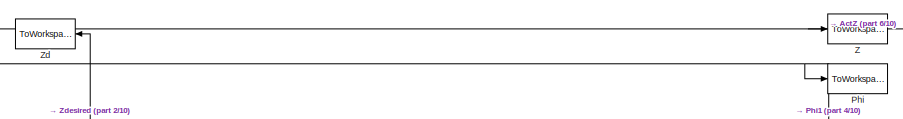
[diagram: root canvas - part 1/10, top center region]
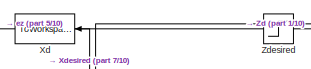
[diagram: root canvas - part 2/10, top center region]
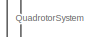
[diagram: root canvas - part 3/10, top right region]
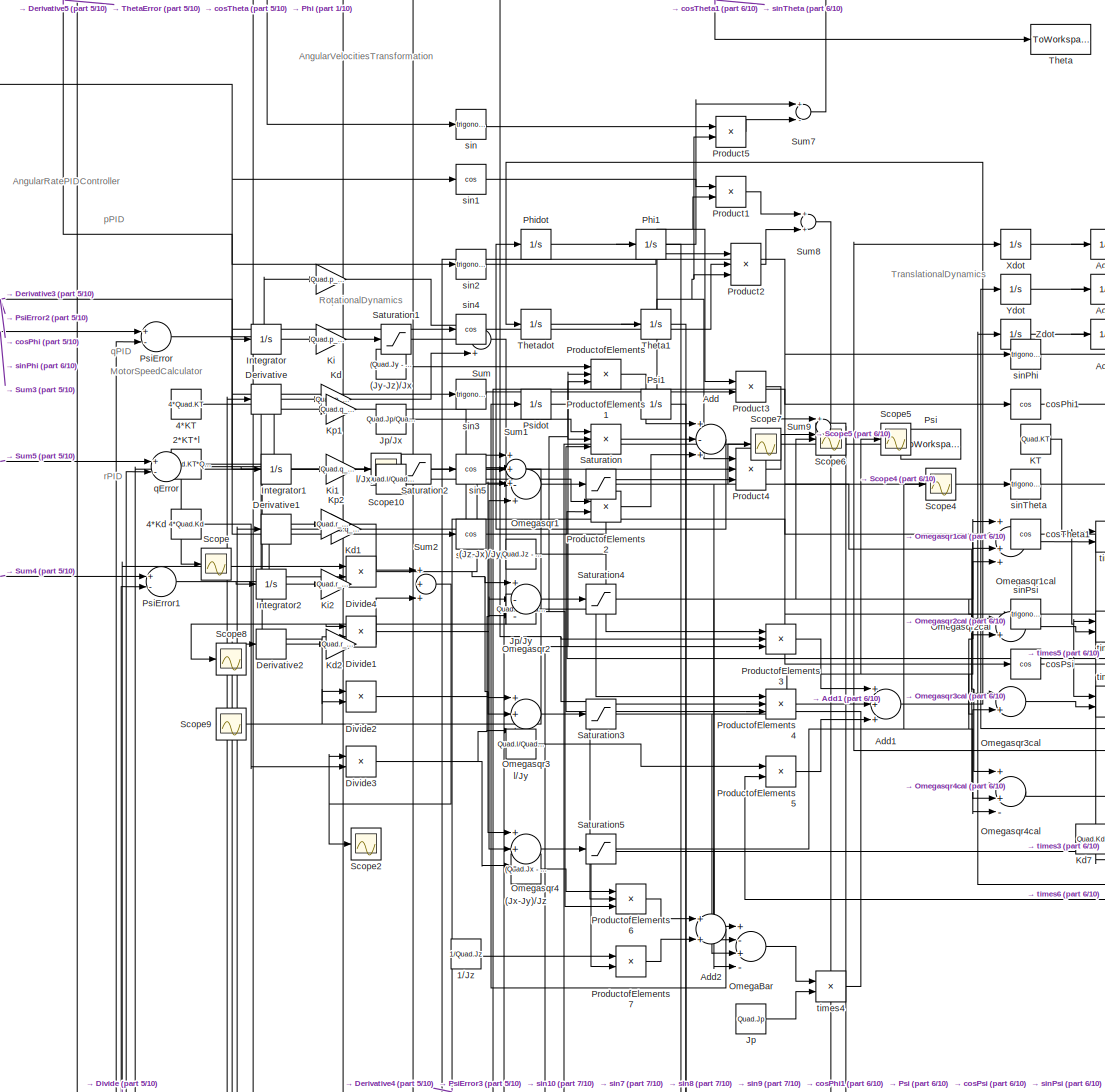
[diagram: root canvas - part 4/10, middle right region]
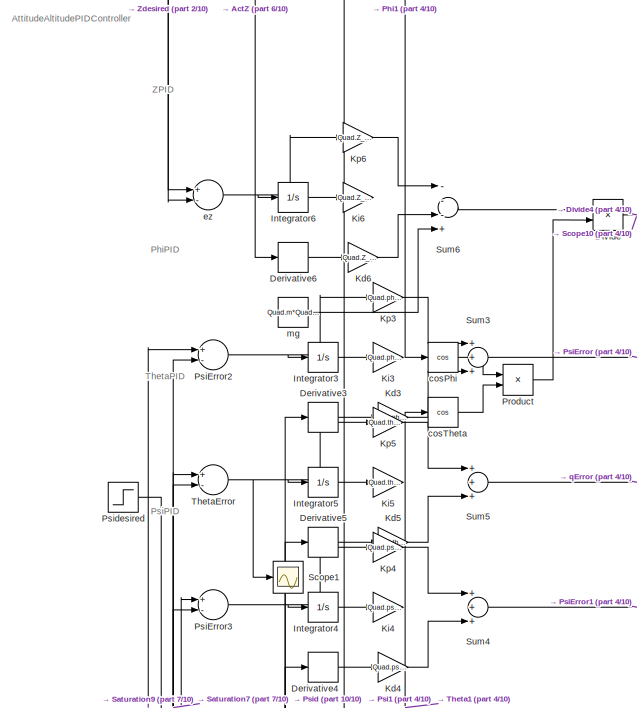
[diagram: root canvas - part 5/10, middle left region]
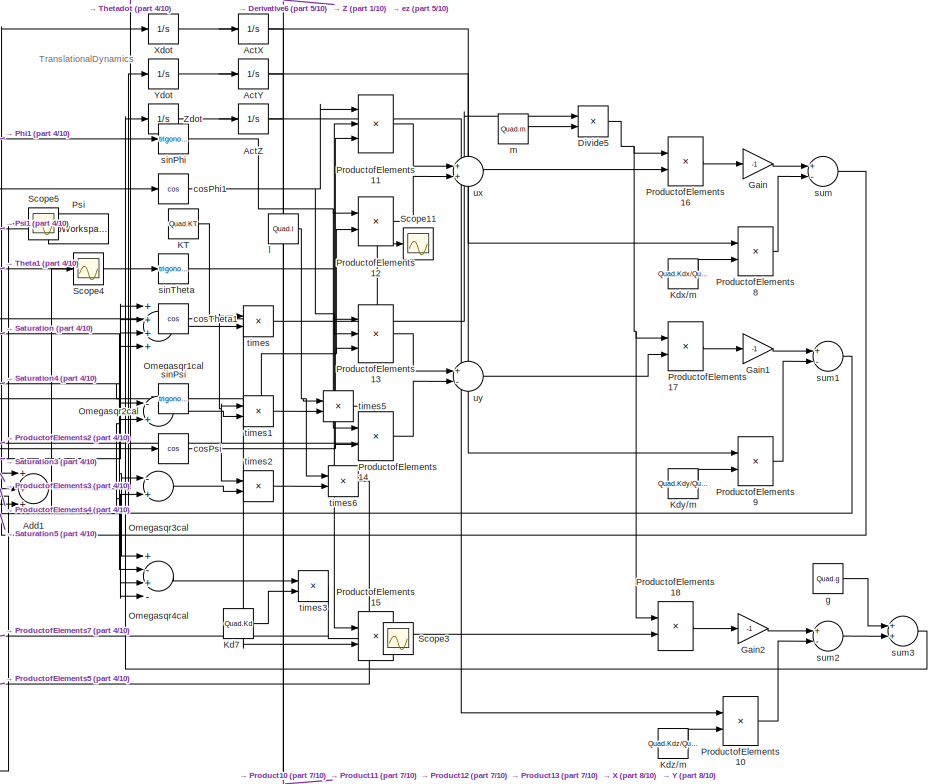
[diagram: root canvas - part 6/10, middle right region]
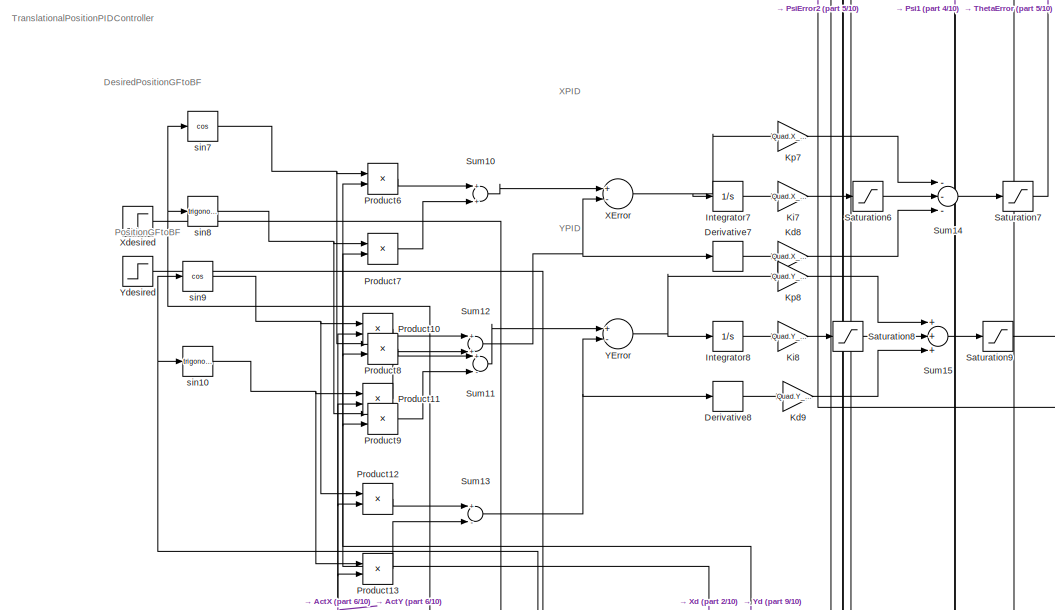
[diagram: root canvas - part 7/10, middle left region]
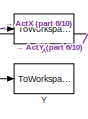
[diagram: root canvas - part 8/10, bottom right region]
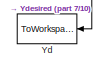
[diagram: root canvas - part 9/10, bottom center region]
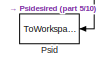
[diagram: root canvas - part 10/10, bottom center region]
MODEL slx_f68c8c38530a
KIND model
CONFIG AbsTol = auto
CONFIG EnableMultiTasking = on
CONFIG FixedStep = auto
CONFIG MaxStep = auto
CONFIG MinStep = auto
CONFIG RelTol = 1e-3
CONFIG SampleTimeConstraint = Unconstrained
CONFIG Solver = ode45
CONFIG SolverName = ode45
CONFIG StartTime = 0.0
CONFIG StopTime = 10
WORKSPACE source: external: MAT-File  (data not in archive)
BLOCK [Constant] (Jx-Jy)//Jz
  Value = (Quad.Jx - Quad.Jy)/Quad.Jz
BLOCK [Constant] (Jy-Jz)//Jx
  Value = (Quad.Jy - Quad.Jz)/Quad.Jx
BLOCK [Constant] (Jz-Jx)//Jy
  Value = (Quad.Jz - Quad.Jx)/Quad.Jy
BLOCK [Constant] 1//Jz
  Value = 1/Quad.Jz
BLOCK [Constant] 2*KT*l
  Value = 2*Quad.KT*Quad.l
BLOCK [Constant] 4*KT
  Value = 4*Quad.KT
BLOCK [Constant] 4*Kd
  Value = 4*Quad.Kd
BLOCK [Integrator] ActX
  Ports = [1, 1]
BLOCK [Integrator] ActY
  Ports = [1, 1]
BLOCK [Integrator] ActZ
  Ports = [1, 1]
BLOCK [Sum] Add
  InputSameDT = off
  Inputs = +-+
  OutDataTypeStr = Inherit: Inherit via internal rule
  Ports = [3, 1]
  SaturateOnIntegerOverflow = off
BLOCK [Sum] Add1
  InputSameDT = off
  Inputs = +++
  OutDataTypeStr = Inherit: Inherit via internal rule
  Ports = [3, 1]
  SaturateOnIntegerOverflow = off
BLOCK [Sum] Add2
  InputSameDT = off
  OutDataTypeStr = Inherit: Inherit via internal rule
  Ports = [2, 1]
  SaturateOnIntegerOverflow = off
BLOCK [Derivative] Derivative
BLOCK [Derivative] Derivative1
BLOCK [Derivative] Derivative2
BLOCK [Derivative] Derivative3
BLOCK [Derivative] Derivative4
BLOCK [Derivative] Derivative5
BLOCK [Derivative] Derivative6
BLOCK [Derivative] Derivative7
BLOCK [Derivative] Derivative8
BLOCK [Product] Divide
  InputSameDT = off
  Inputs = */
  OutDataTypeStr = Inherit: Inherit via internal rule
  Ports = [2, 1]
  RndMeth = Floor
  SaturateOnIntegerOverflow = off
BLOCK [Product] Divide1
  InputSameDT = off
  Inputs = */
  OutDataTypeStr = Inherit: Inherit via internal rule
  Ports = [2, 1]
  RndMeth = Floor
  SaturateOnIntegerOverflow = off
BLOCK [Product] Divide2
  InputSameDT = off
  Inputs = */
  OutDataTypeStr = Inherit: Inherit via internal rule
  Ports = [2, 1]
  RndMeth = Floor
  SaturateOnIntegerOverflow = off
BLOCK [Product] Divide3
  InputSameDT = off
  Inputs = */
  OutDataTypeStr = Inherit: Inherit via internal rule
  Ports = [2, 1]
  RndMeth = Floor
  SaturateOnIntegerOverflow = off
BLOCK [Product] Divide4
  InputSameDT = off
  Inputs = */
  OutDataTypeStr = Inherit: Inherit via internal rule
  Ports = [2, 1]
  RndMeth = Floor
  SaturateOnIntegerOverflow = off
BLOCK [Product] Divide5
  InputSameDT = off
  Inputs = */
  OutDataTypeStr = Inherit: Inherit via internal rule
  Ports = [2, 1]
  RndMeth = Floor
  SaturateOnIntegerOverflow = off
BLOCK [Gain] Gain
  Gain = -1
  OutDataTypeStr = Inherit: Inherit via internal rule
  ParamDataTypeStr = Inherit: Inherit via internal rule
  SaturateOnIntegerOverflow = off
BLOCK [Gain] Gain1
  Gain = -1
  OutDataTypeStr = Inherit: Inherit via internal rule
  ParamDataTypeStr = Inherit: Inherit via internal rule
  SaturateOnIntegerOverflow = off
BLOCK [Gain] Gain2
  Gain = -1
  OutDataTypeStr = Inherit: Inherit via internal rule
  ParamDataTypeStr = Inherit: Inherit via internal rule
  SaturateOnIntegerOverflow = off
BLOCK [Integrator] Integrator
  Ports = [1, 1]
BLOCK [Integrator] Integrator1
  Ports = [1, 1]
BLOCK [Integrator] Integrator2
  Ports = [1, 1]
BLOCK [Integrator] Integrator3
  Ports = [1, 1]
BLOCK [Integrator] Integrator4
  Ports = [1, 1]
BLOCK [Integrator] Integrator5
  Ports = [1, 1]
BLOCK [Integrator] Integrator6
  Ports = [1, 1]
BLOCK [Integrator] Integrator7
  Ports = [1, 1]
BLOCK [Integrator] Integrator8
  Ports = [1, 1]
BLOCK [Constant] Jp
  Value = Quad.Jp
BLOCK [Constant] Jp//Jx
  Value = Quad.Jp/Quad.Jx
BLOCK [Constant] Jp//Jy
  Value = Quad.Jp/Quad.Jy
BLOCK [Constant] KT
  Value = Quad.KT
BLOCK [Gain] Kd
  Gain = Quad.p_KD
  OutDataTypeStr = Inherit: Inherit via internal rule
  ParamDataTypeStr = Inherit: Inherit via internal rule
  SaturateOnIntegerOverflow = off
BLOCK [Gain] Kd1
  Gain = Quad.q_KD
  OutDataTypeStr = Inherit: Inherit via internal rule
  ParamDataTypeStr = Inherit: Inherit via internal rule
  SaturateOnIntegerOverflow = off
BLOCK [Gain] Kd2
  Gain = Quad.r_KD
  OutDataTypeStr = Inherit: Inherit via internal rule
  ParamDataTypeStr = Inherit: Inherit via internal rule
  SaturateOnIntegerOverflow = off
BLOCK [Gain] Kd3
  Gain = Quad.phi_KD
  OutDataTypeStr = Inherit: Inherit via internal rule
  ParamDataTypeStr = Inherit: Inherit via internal rule
  SaturateOnIntegerOverflow = off
BLOCK [Gain] Kd4
  Gain = Quad.psi_KD
  OutDataTypeStr = Inherit: Inherit via internal rule
  ParamDataTypeStr = Inherit: Inherit via internal rule
  SaturateOnIntegerOverflow = off
BLOCK [Gain] Kd5
  Gain = Quad.theta_KD
  OutDataTypeStr = Inherit: Inherit via internal rule
  ParamDataTypeStr = Inherit: Inherit via internal rule
  SaturateOnIntegerOverflow = off
BLOCK [Gain] Kd6
  Gain = Quad.Z_KD
  OutDataTypeStr = Inherit: Inherit via internal rule
  ParamDataTypeStr = Inherit: Inherit via internal rule
  SaturateOnIntegerOverflow = off
BLOCK [Constant] Kd7
  Value = Quad.Kd
BLOCK [Gain] Kd8
  Gain = Quad.X_KD
  OutDataTypeStr = Inherit: Inherit via internal rule
  ParamDataTypeStr = Inherit: Inherit via internal rule
  SaturateOnIntegerOverflow = off
BLOCK [Gain] Kd9
  Gain = Quad.Y_KD
  OutDataTypeStr = Inherit: Inherit via internal rule
  ParamDataTypeStr = Inherit: Inherit via internal rule
  SaturateOnIntegerOverflow = off
BLOCK [Constant] Kdx//m
  Value = Quad.Kdx/Quad.m
BLOCK [Constant] Kdy//m
  Value = Quad.Kdy/Quad.m
BLOCK [Constant] Kdz//m
  Value = Quad.Kdz/Quad.m
BLOCK [Gain] Ki
  Gain = Quad.p_KI
  OutDataTypeStr = Inherit: Inherit via internal rule
  ParamDataTypeStr = Inherit: Inherit via internal rule
  SaturateOnIntegerOverflow = off
BLOCK [Gain] Ki1
  Gain = Quad.q_KI
  OutDataTypeStr = Inherit: Inherit via internal rule
  ParamDataTypeStr = Inherit: Inherit via internal rule
  SaturateOnIntegerOverflow = off
BLOCK [Gain] Ki2
  Gain = Quad.r_KI
  OutDataTypeStr = Inherit: Inherit via internal rule
  ParamDataTypeStr = Inherit: Inherit via internal rule
  SaturateOnIntegerOverflow = off
BLOCK [Gain] Ki3
  Gain = Quad.phi_KI
  OutDataTypeStr = Inherit: Inherit via internal rule
  ParamDataTypeStr = Inherit: Inherit via internal rule
  SaturateOnIntegerOverflow = off
BLOCK [Gain] Ki4
  Gain = Quad.psi_KI
  OutDataTypeStr = Inherit: Inherit via internal rule
  ParamDataTypeStr = Inherit: Inherit via internal rule
  SaturateOnIntegerOverflow = off
BLOCK [Gain] Ki5
  Gain = Quad.theta_KI
  OutDataTypeStr = Inherit: Inherit via internal rule
  ParamDataTypeStr = Inherit: Inherit via internal rule
  SaturateOnIntegerOverflow = off
BLOCK [Gain] Ki6
  Gain = Quad.Z_KI
  OutDataTypeStr = Inherit: Inherit via internal rule
  ParamDataTypeStr = Inherit: Inherit via internal rule
  SaturateOnIntegerOverflow = off
BLOCK [Gain] Ki7
  Gain = Quad.X_KI
  OutDataTypeStr = Inherit: Inherit via internal rule
  ParamDataTypeStr = Inherit: Inherit via internal rule
  SaturateOnIntegerOverflow = off
BLOCK [Gain] Ki8
  Gain = Quad.Y_KI
  OutDataTypeStr = Inherit: Inherit via internal rule
  ParamDataTypeStr = Inherit: Inherit via internal rule
  SaturateOnIntegerOverflow = off
BLOCK [Gain] Kp
  Gain = Quad.p_KP
  OutDataTypeStr = Inherit: Inherit via internal rule
  ParamDataTypeStr = Inherit: Inherit via internal rule
  SaturateOnIntegerOverflow = off
BLOCK [Gain] Kp1
  Gain = Quad.q_KP
  OutDataTypeStr = Inherit: Inherit via internal rule
  ParamDataTypeStr = Inherit: Inherit via internal rule
  SaturateOnIntegerOverflow = off
BLOCK [Gain] Kp2
  Gain = Quad.r_KP
  OutDataTypeStr = Inherit: Inherit via internal rule
  ParamDataTypeStr = Inherit: Inherit via internal rule
  SaturateOnIntegerOverflow = off
BLOCK [Gain] Kp3
  Gain = Quad.phi_KP
  OutDataTypeStr = Inherit: Inherit via internal rule
  ParamDataTypeStr = Inherit: Inherit via internal rule
  SaturateOnIntegerOverflow = off
BLOCK [Gain] Kp4
  Gain = Quad.psi_KP
  OutDataTypeStr = Inherit: Inherit via internal rule
  ParamDataTypeStr = Inherit: Inherit via internal rule
  SaturateOnIntegerOverflow = off
BLOCK [Gain] Kp5
  Gain = Quad.theta_KP
  OutDataTypeStr = Inherit: Inherit via internal rule
  ParamDataTypeStr = Inherit: Inherit via internal rule
  SaturateOnIntegerOverflow = off
BLOCK [Gain] Kp6
  Gain = Quad.Z_KP
  OutDataTypeStr = Inherit: Inherit via internal rule
  ParamDataTypeStr = Inherit: Inherit via internal rule
  SaturateOnIntegerOverflow = off
BLOCK [Gain] Kp7
  Gain = Quad.X_KP
  OutDataTypeStr = Inherit: Inherit via internal rule
  ParamDataTypeStr = Inherit: Inherit via internal rule
  SaturateOnIntegerOverflow = off
BLOCK [Gain] Kp8
  Gain = Quad.Y_KP
  OutDataTypeStr = Inherit: Inherit via internal rule
  ParamDataTypeStr = Inherit: Inherit via internal rule
  SaturateOnIntegerOverflow = off
BLOCK [Sum] OmegaBar
  InputSameDT = off
  Inputs = +-+-
  OutDataTypeStr = Inherit: Inherit via internal rule
  Ports = [4, 1]
  SaturateOnIntegerOverflow = off
BLOCK [Sum] Omegasqr1
  InputSameDT = off
  Inputs = +-+
  OutDataTypeStr = Inherit: Inherit via internal rule
  Ports = [3, 1]
  SaturateOnIntegerOverflow = off
BLOCK [Sum] Omegasqr1cal
  InputSameDT = off
  Inputs = ++++
  OutDataTypeStr = Inherit: Inherit via internal rule
  Ports = [4, 1]
  SaturateOnIntegerOverflow = off
BLOCK [Sum] Omegasqr2
  InputSameDT = off
  Inputs = +--
  OutDataTypeStr = Inherit: Inherit via internal rule
  Ports = [3, 1]
  SaturateOnIntegerOverflow = off
BLOCK [Sum] Omegasqr2cal
  InputSameDT = off
  Inputs = -+
  OutDataTypeStr = Inherit: Inherit via internal rule
  Ports = [2, 1]
  SaturateOnIntegerOverflow = off
BLOCK [Sum] Omegasqr3
  InputSameDT = off
  Inputs = +++
  OutDataTypeStr = Inherit: Inherit via internal rule
  Ports = [3, 1]
  SaturateOnIntegerOverflow = off
BLOCK [Sum] Omegasqr3cal
  InputSameDT = off
  Inputs = -+
  OutDataTypeStr = Inherit: Inherit via internal rule
  Ports = [2, 1]
  SaturateOnIntegerOverflow = off
BLOCK [Sum] Omegasqr4
  InputSameDT = off
  Inputs = ++-
  OutDataTypeStr = Inherit: Inherit via internal rule
  Ports = [3, 1]
  SaturateOnIntegerOverflow = off
BLOCK [Sum] Omegasqr4cal
  InputSameDT = off
  Inputs = +-+-
  OutDataTypeStr = Inherit: Inherit via internal rule
  Ports = [4, 1]
  SaturateOnIntegerOverflow = off
BLOCK [ToWorkspace] Phi
  MaxDataPoints = inf
  Ports = [1]
  SampleTime = -1
  SaveFormat = Structure
  VariableName = Phi_out
BLOCK [Integrator] Phi1
  Ports = [1, 1]
  ZeroCross = off
BLOCK [Integrator] Phidot
  Ports = [1, 1]
BLOCK [Product] Product
  InputSameDT = off
  OutDataTypeStr = Inherit: Inherit via internal rule
  Ports = [2, 1]
  SaturateOnIntegerOverflow = off
BLOCK [Product] Product1
  InputSameDT = off
  OutDataTypeStr = Inherit: Inherit via internal rule
  Ports = [2, 1]
  SaturateOnIntegerOverflow = off
BLOCK [Product] Product10
  InputSameDT = off
  OutDataTypeStr = Inherit: Inherit via internal rule
  Ports = [2, 1]
  SaturateOnIntegerOverflow = off
BLOCK [Product] Product11
  InputSameDT = off
  OutDataTypeStr = Inherit: Inherit via internal rule
  Ports = [2, 1]
  SaturateOnIntegerOverflow = off
BLOCK [Product] Product12
  InputSameDT = off
  OutDataTypeStr = Inherit: Inherit via internal rule
  Ports = [2, 1]
  SaturateOnIntegerOverflow = off
BLOCK [Product] Product13
  InputSameDT = off
  OutDataTypeStr = Inherit: Inherit via internal rule
  Ports = [2, 1]
  SaturateOnIntegerOverflow = off
BLOCK [Product] Product2
  InputSameDT = off
  Inputs = 3
  OutDataTypeStr = Inherit: Inherit via internal rule
  Ports = [3, 1]
  SaturateOnIntegerOverflow = off
BLOCK [Product] Product3
  InputSameDT = off
  OutDataTypeStr = Inherit: Inherit via internal rule
  Ports = [2, 1]
  SaturateOnIntegerOverflow = off
BLOCK [Product] Product4
  InputSameDT = off
  Inputs = 3
  OutDataTypeStr = Inherit: Inherit via internal rule
  Ports = [3, 1]
  SaturateOnIntegerOverflow = off
BLOCK [Product] Product5
  InputSameDT = off
  OutDataTypeStr = Inherit: Inherit via internal rule
  Ports = [2, 1]
  SaturateOnIntegerOverflow = off
BLOCK [Product] Product6
  InputSameDT = off
  OutDataTypeStr = Inherit: Inherit via internal rule
  Ports = [2, 1]
  SaturateOnIntegerOverflow = off
BLOCK [Product] Product7
  InputSameDT = off
  OutDataTypeStr = Inherit: Inherit via internal rule
  Ports = [2, 1]
  SaturateOnIntegerOverflow = off
BLOCK [Product] Product8
  InputSameDT = off
  OutDataTypeStr = Inherit: Inherit via internal rule
  Ports = [2, 1]
  SaturateOnIntegerOverflow = off
BLOCK [Product] Product9
  InputSameDT = off
  OutDataTypeStr = Inherit: Inherit via internal rule
  Ports = [2, 1]
  SaturateOnIntegerOverflow = off
BLOCK [Product] ProductofElements
  InputSameDT = off
  Inputs = 3
  OutDataTypeStr = Inherit: Inherit via internal rule
  Ports = [3, 1]
  RndMeth = Floor
  SaturateOnIntegerOverflow = off
BLOCK [Product] ProductofElements1
  InputSameDT = off
  Inputs = 3
  OutDataTypeStr = Inherit: Inherit via internal rule
  Ports = [3, 1]
  RndMeth = Floor
  SaturateOnIntegerOverflow = off
BLOCK [Product] ProductofElements10
  InputSameDT = off
  OutDataTypeStr = Inherit: Inherit via internal rule
  Ports = [2, 1]
  RndMeth = Floor
  SaturateOnIntegerOverflow = off
BLOCK [Product] ProductofElements11
  InputSameDT = off
  Inputs = 3
  OutDataTypeStr = Inherit: Inherit via internal rule
  Ports = [3, 1]
  RndMeth = Floor
  SaturateOnIntegerOverflow = off
BLOCK [Product] ProductofElements12
  InputSameDT = off
  OutDataTypeStr = Inherit: Inherit via internal rule
  Ports = [2, 1]
  RndMeth = Floor
  SaturateOnIntegerOverflow = off
BLOCK [Product] ProductofElements13
  InputSameDT = off
  Inputs = 3
  OutDataTypeStr = Inherit: Inherit via internal rule
  Ports = [3, 1]
  RndMeth = Floor
  SaturateOnIntegerOverflow = off
BLOCK [Product] ProductofElements14
  InputSameDT = off
  OutDataTypeStr = Inherit: Inherit via internal rule
  Ports = [2, 1]
  RndMeth = Floor
  SaturateOnIntegerOverflow = off
BLOCK [Product] ProductofElements15
  InputSameDT = off
  OutDataTypeStr = Inherit: Inherit via internal rule
  Ports = [2, 1]
  RndMeth = Floor
  SaturateOnIntegerOverflow = off
BLOCK [Product] ProductofElements16
  InputSameDT = off
  OutDataTypeStr = Inherit: Inherit via internal rule
  Ports = [2, 1]
  RndMeth = Floor
  SaturateOnIntegerOverflow = off
BLOCK [Product] ProductofElements17
  InputSameDT = off
  OutDataTypeStr = Inherit: Inherit via internal rule
  Ports = [2, 1]
  RndMeth = Floor
  SaturateOnIntegerOverflow = off
BLOCK [Product] ProductofElements18
  InputSameDT = off
  OutDataTypeStr = Inherit: Inherit via internal rule
  Ports = [2, 1]
  RndMeth = Floor
  SaturateOnIntegerOverflow = off
BLOCK [Product] ProductofElements2
  InputSameDT = off
  OutDataTypeStr = Inherit: Inherit via internal rule
  Ports = [2, 1]
  RndMeth = Floor
  SaturateOnIntegerOverflow = off
BLOCK [Product] ProductofElements3
  InputSameDT = off
  Inputs = 3
  OutDataTypeStr = Inherit: Inherit via internal rule
  Ports = [3, 1]
  RndMeth = Floor
  SaturateOnIntegerOverflow = off
BLOCK [Product] ProductofElements4
  InputSameDT = off
  Inputs = 3
  OutDataTypeStr = Inherit: Inherit via internal rule
  Ports = [3, 1]
  RndMeth = Floor
  SaturateOnIntegerOverflow = off
BLOCK [Product] ProductofElements5
  InputSameDT = off
  OutDataTypeStr = Inherit: Inherit via internal rule
  Ports = [2, 1]
  RndMeth = Floor
  SaturateOnIntegerOverflow = off
BLOCK [Product] ProductofElements6
  InputSameDT = off
  Inputs = 3
  OutDataTypeStr = Inherit: Inherit via internal rule
  Ports = [3, 1]
  RndMeth = Floor
  SaturateOnIntegerOverflow = off
BLOCK [Product] ProductofElements7
  InputSameDT = off
  OutDataTypeStr = Inherit: Inherit via internal rule
  Ports = [2, 1]
  RndMeth = Floor
  SaturateOnIntegerOverflow = off
BLOCK [Product] ProductofElements8
  InputSameDT = off
  OutDataTypeStr = Inherit: Inherit via internal rule
  Ports = [2, 1]
  RndMeth = Floor
  SaturateOnIntegerOverflow = off
BLOCK [Product] ProductofElements9
  InputSameDT = off
  OutDataTypeStr = Inherit: Inherit via internal rule
  Ports = [2, 1]
  RndMeth = Floor
  SaturateOnIntegerOverflow = off
BLOCK [ToWorkspace] Psi
  MaxDataPoints = inf
  Ports = [1]
  SampleTime = -1
  SaveFormat = Structure
  VariableName = Psi_out
BLOCK [Integrator] Psi1
  Ports = [1, 1]
  ZeroCross = off
BLOCK [Sum] PsiError
  InputSameDT = off
  Inputs = +-
  OutDataTypeStr = Inherit: Inherit via internal rule
  Ports = [2, 1]
  SaturateOnIntegerOverflow = off
BLOCK [Sum] PsiError1
  InputSameDT = off
  Inputs = +-
  OutDataTypeStr = Inherit: Inherit via internal rule
  Ports = [2, 1]
  SaturateOnIntegerOverflow = off
BLOCK [Sum] PsiError2
  InputSameDT = off
  Inputs = +-
  OutDataTypeStr = Inherit: Inherit via internal rule
  Ports = [2, 1]
  SaturateOnIntegerOverflow = off
BLOCK [Sum] PsiError3
  InputSameDT = off
  Inputs = +-
  OutDataTypeStr = Inherit: Inherit via internal rule
  Ports = [2, 1]
  SaturateOnIntegerOverflow = off
BLOCK [ToWorkspace] Psid
  MaxDataPoints = inf
  Ports = [1]
  SampleTime = -1
  SaveFormat = Structure
  VariableName = Psi_desired
BLOCK [Step] Psidesired
  After = 0
  SampleTime = 0
BLOCK [Integrator] Psidot
  Ports = [1, 1]
  ZeroCross = off
BLOCK [Saturate] Saturation
  InputPortMap = u0
  LowerLimit = Quad.min_motor_speed^2
  Ports = [1, 1]
  UpperLimit = Quad.max_motor_speed^2
  ZeroCross = off
BLOCK [Saturate] Saturation1
  InputPortMap = u0
  LowerLimit = Quad.U2_min
  Ports = [1, 1]
  UpperLimit = Quad.U2_max
BLOCK [Saturate] Saturation2
  InputPortMap = u0
  LowerLimit = Quad.U3_min
  Ports = [1, 1]
  UpperLimit = Quad.U3_max
BLOCK [Saturate] Saturation3
  InputPortMap = u0
  LowerLimit = Quad.min_motor_speed^2
  Ports = [1, 1]
  UpperLimit = Quad.max_motor_speed^2
  ZeroCross = off
BLOCK [Saturate] Saturation4
  InputPortMap = u0
  LowerLimit = Quad.min_motor_speed^2
  Ports = [1, 1]
  UpperLimit = Quad.max_motor_speed^2
  ZeroCross = off
BLOCK [Saturate] Saturation5
  InputPortMap = u0
  LowerLimit = Quad.min_motor_speed^2
  Ports = [1, 1]
  UpperLimit = Quad.max_motor_speed^2
  ZeroCross = off
BLOCK [Saturate] Saturation6
  InputPortMap = u0
  LowerLimit = -Quad.theta_max
  Ports = [1, 1]
  UpperLimit = Quad.theta_max
BLOCK [Saturate] Saturation7
  InputPortMap = u0
  LowerLimit = -Quad.theta_max
  Ports = [1, 1]
  UpperLimit = Quad.theta_max
BLOCK [Saturate] Saturation8
  InputPortMap = u0
  LowerLimit = -Quad.phi_max
  Ports = [1, 1]
  UpperLimit = Quad.phi_max
BLOCK [Saturate] Saturation9
  InputPortMap = u0
  LowerLimit = -Quad.phi_max
  Ports = [1, 1]
  UpperLimit = Quad.phi_max
BLOCK [Scope] Scope
  NumInputPorts = 1
  Ports = [1]
  ScopeSpecificationString = C++SS(StrPVP('Location','[188, 390, 512, 629]'),StrPVP('Open','off'),MxPVP('AxesTitles',53,'struct(''axes1'',''%<SignalLabel>'')'),StrPVP('SaveName','ScopeData11'),StrPVP('DataFormat','StructureWithTime'),StrPVP('BlockParamSampleTime','0'),StrPVP('LimitDataPoints','on'),StrPVP('Decimation','1'),StrPVP('BlockParamSampleInput','off'))
BLOCK [Scope] Scope1
  NumInputPorts = 1
  Ports = [1]
  ScopeSpecificationString = C++SS(StrPVP('Location','[671, 276, 995, 515]'),StrPVP('Open','off'),MxPVP('AxesTitles',53,'struct(''axes1'',''%<SignalLabel>'')'),StrPVP('SaveName','ScopeData10'),StrPVP('DataFormat','StructureWithTime'),StrPVP('BlockParamSampleTime','0'),StrPVP('LimitDataPoints','on'),StrPVP('Decimation','1'),StrPVP('BlockParamSampleInput','off'))
BLOCK [Scope] Scope10
  NumInputPorts = 1
  Ports = [1]
  ScopeSpecificationString = C++SS(StrPVP('Location','[188, 390, 512, 629]'),StrPVP('Open','off'),MxPVP('AxesTitles',53,'struct(''axes1'',''%<SignalLabel>'')'),StrPVP('SaveName','ScopeData2'),StrPVP('DataFormat','StructureWithTime'),StrPVP('BlockParamSampleTime','0'),StrPVP('LimitDataPoints','on'),StrPVP('Decimation','1'),StrPVP('BlockParamSampleInput','off'))
BLOCK [Scope] Scope11
  NumInputPorts = 1
  Ports = [1]
  ScopeSpecificationString = C++SS(StrPVP('Location','[583, 385, 907, 624]'),StrPVP('Open','off'),MxPVP('AxesTitles',53,'struct(''axes1'',''%<SignalLabel>'')'),StrPVP('SaveName','ScopeData3'),StrPVP('DataFormat','StructureWithTime'),StrPVP('BlockParamSampleTime','0'),StrPVP('LimitDataPoints','on'),StrPVP('Decimation','1'),StrPVP('BlockParamSampleInput','off'))
BLOCK [Scope] Scope2
  NumInputPorts = 1
  Ports = [1]
  ScopeSpecificationString = C++SS(StrPVP('Location','[188, 390, 512, 629]'),StrPVP('Open','off'),MxPVP('AxesTitles',53,'struct(''axes1'',''%<SignalLabel>'')'),StrPVP('SaveName','ScopeData4'),StrPVP('DataFormat','StructureWithTime'),StrPVP('BlockParamSampleTime','0'),StrPVP('LimitDataPoints','on'),StrPVP('Decimation','1'),StrPVP('BlockParamSampleInput','off'))
BLOCK [Scope] Scope3
  NumInputPorts = 1
  Ports = [1]
  ScopeSpecificationString = C++SS(StrPVP('Location','[531, 393, 855, 632]'),StrPVP('Open','off'),MxPVP('AxesTitles',53,'struct(''axes1'',''%<SignalLabel>'')'),StrPVP('SaveName','ScopeData5'),StrPVP('DataFormat','StructureWithTime'),StrPVP('BlockParamSampleTime','0'),StrPVP('LimitDataPoints','on'),StrPVP('Decimation','1'),StrPVP('BlockParamSampleInput','off'))
BLOCK [Scope] Scope4
  NumInputPorts = 1
  Ports = [1]
  ScopeSpecificationString = C++SS(StrPVP('Location','[188, 390, 512, 629]'),StrPVP('Open','off'),MxPVP('AxesTitles',53,'struct(''axes1'',''%<SignalLabel>'')'),StrPVP('SaveName','ScopeData6'),StrPVP('DataFormat','StructureWithTime'),StrPVP('BlockParamSampleTime','0'),StrPVP('LimitDataPoints','on'),StrPVP('Decimation','1'),StrPVP('BlockParamSampleInput','off'))
BLOCK [Scope] Scope5
  NumInputPorts = 1
  Ports = [1]
  ScopeSpecificationString = C++SS(StrPVP('Location','[188, 390, 512, 629]'),StrPVP('Open','off'),MxPVP('AxesTitles',53,'struct(''axes1'',''%<SignalLabel>'')'),StrPVP('SaveName','ScopeData7'),StrPVP('DataFormat','StructureWithTime'),StrPVP('BlockParamSampleTime','0'),StrPVP('LimitDataPoints','on'),StrPVP('Decimation','1'),StrPVP('BlockParamSampleInput','off'))
BLOCK [Scope] Scope6
  NumInputPorts = 1
  Ports = [1]
  ScopeSpecificationString = C++SS(StrPVP('Location','[188, 390, 512, 629]'),StrPVP('Open','off'),MxPVP('AxesTitles',53,'struct(''axes1'',''%<SignalLabel>'')'),StrPVP('SaveName','ScopeData8'),StrPVP('DataFormat','StructureWithTime'),StrPVP('BlockParamSampleTime','0'),StrPVP('LimitDataPoints','on'),StrPVP('Decimation','1'),StrPVP('BlockParamSampleInput','off'))
BLOCK [Scope] Scope7
  NumInputPorts = 1
  Ports = [1]
  ScopeSpecificationString = C++SS(StrPVP('Location','[188, 390, 512, 629]'),StrPVP('Open','off'),MxPVP('AxesTitles',53,'struct(''axes1'',''%<SignalLabel>'')'),StrPVP('SaveName','ScopeData9'),StrPVP('DataFormat','StructureWithTime'),StrPVP('BlockParamSampleTime','0'),StrPVP('LimitDataPoints','on'),StrPVP('Decimation','1'),StrPVP('BlockParamSampleInput','off'))
BLOCK [Scope] Scope8
  NumInputPorts = 1
  Ports = [1]
  ScopeSpecificationString = C++SS(StrPVP('Location','[188, 390, 512, 629]'),StrPVP('Open','off'),MxPVP('AxesTitles',53,'struct(''axes1'',''%<SignalLabel>'')'),StrPVP('DataFormat','StructureWithTime'),StrPVP('BlockParamSampleTime','0'),StrPVP('LimitDataPoints','on'),StrPVP('Decimation','1'),StrPVP('BlockParamSampleInput','off'))
BLOCK [Scope] Scope9
  NumInputPorts = 1
  Ports = [1]
  ScopeSpecificationString = C++SS(StrPVP('Location','[188, 390, 512, 629]'),StrPVP('Open','off'),MxPVP('AxesTitles',53,'struct(''axes1'',''%<SignalLabel>'')'),StrPVP('SaveName','ScopeData1'),StrPVP('DataFormat','StructureWithTime'),StrPVP('BlockParamSampleTime','0'),StrPVP('LimitDataPoints','on'),StrPVP('Decimation','1'),StrPVP('BlockParamSampleInput','off'))
BLOCK [Sum] Sum
  InputSameDT = off
  Inputs = +++
  OutDataTypeStr = Inherit: Inherit via internal rule
  Ports = [3, 1]
  SaturateOnIntegerOverflow = off
BLOCK [Sum] Sum1
  InputSameDT = off
  Inputs = +++
  OutDataTypeStr = Inherit: Inherit via internal rule
  Ports = [3, 1]
  SaturateOnIntegerOverflow = off
BLOCK [Sum] Sum10
  InputSameDT = off
  OutDataTypeStr = Inherit: Inherit via internal rule
  Ports = [2, 1]
  SaturateOnIntegerOverflow = off
BLOCK [Sum] Sum11
  InputSameDT = off
  Inputs = +-
  OutDataTypeStr = Inherit: Inherit via internal rule
  Ports = [2, 1]
  SaturateOnIntegerOverflow = off
BLOCK [Sum] Sum12
  InputSameDT = off
  OutDataTypeStr = Inherit: Inherit via internal rule
  Ports = [2, 1]
  SaturateOnIntegerOverflow = off
BLOCK [Sum] Sum13
  InputSameDT = off
  Inputs = +-
  OutDataTypeStr = Inherit: Inherit via internal rule
  Ports = [2, 1]
  SaturateOnIntegerOverflow = off
BLOCK [Sum] Sum14
  InputSameDT = off
  Inputs = ---
  OutDataTypeStr = Inherit: Inherit via internal rule
  Ports = [3, 1]
  SaturateOnIntegerOverflow = off
BLOCK [Sum] Sum15
  InputSameDT = off
  Inputs = +++
  OutDataTypeStr = Inherit: Inherit via internal rule
  Ports = [3, 1]
  SaturateOnIntegerOverflow = off
BLOCK [Sum] Sum2
  InputSameDT = off
  Inputs = +++
  OutDataTypeStr = Inherit: Inherit via internal rule
  Ports = [3, 1]
  SaturateOnIntegerOverflow = off
BLOCK [Sum] Sum3
  InputSameDT = off
  Inputs = +++
  OutDataTypeStr = Inherit: Inherit via internal rule
  Ports = [3, 1]
  SaturateOnIntegerOverflow = off
BLOCK [Sum] Sum4
  InputSameDT = off
  Inputs = +++
  OutDataTypeStr = Inherit: Inherit via internal rule
  Ports = [3, 1]
  SaturateOnIntegerOverflow = off
BLOCK [Sum] Sum5
  InputSameDT = off
  Inputs = +++
  OutDataTypeStr = Inherit: Inherit via internal rule
  Ports = [3, 1]
  SaturateOnIntegerOverflow = off
BLOCK [Sum] Sum6
  InputSameDT = off
  Inputs = ---+
  OutDataTypeStr = Inherit: Inherit via internal rule
  Ports = [4, 1]
  SaturateOnIntegerOverflow = off
BLOCK [Sum] Sum7
  InputSameDT = off
  Inputs = +-
  OutDataTypeStr = Inherit: Inherit via internal rule
  Ports = [2, 1]
  SaturateOnIntegerOverflow = off
BLOCK [Sum] Sum8
  InputSameDT = off
  OutDataTypeStr = Inherit: Inherit via internal rule
  Ports = [2, 1]
  SaturateOnIntegerOverflow = off
BLOCK [Sum] Sum9
  InputSameDT = off
  OutDataTypeStr = Inherit: Inherit via internal rule
  Ports = [2, 1]
  SaturateOnIntegerOverflow = off
BLOCK [ToWorkspace] Theta
  MaxDataPoints = inf
  Ports = [1]
  SampleTime = -1
  SaveFormat = Structure
  VariableName = Theta_out
BLOCK [Integrator] Theta1
  Ports = [1, 1]
  ZeroCross = off
BLOCK [Sum] ThetaError
  InputSameDT = off
  Inputs = +-
  OutDataTypeStr = Inherit: Inherit via internal rule
  Ports = [2, 1]
  SaturateOnIntegerOverflow = off
BLOCK [Integrator] Thetadot
  Ports = [1, 1]
  ZeroCross = off
BLOCK [ToWorkspace] X
  MaxDataPoints = inf
  Ports = [1]
  SampleTime = -1
  SaveFormat = Structure
  VariableName = X_out
BLOCK [Sum] XError
  InputSameDT = off
  Inputs = +-
  OutDataTypeStr = Inherit: Inherit via internal rule
  Ports = [2, 1]
  SaturateOnIntegerOverflow = off
BLOCK [ToWorkspace] Xd
  MaxDataPoints = inf
  Ports = [1]
  SampleTime = -1
  SaveFormat = Structure
  VariableName = X_desired
BLOCK [Step] Xdesired
  After = .25
  SampleTime = 0
BLOCK [Integrator] Xdot
  Ports = [1, 1]
BLOCK [ToWorkspace] Y
  MaxDataPoints = inf
  Ports = [1]
  SampleTime = -1
  SaveFormat = Structure
  VariableName = Y_out
BLOCK [Sum] YError
  InputSameDT = off
  Inputs = +-
  OutDataTypeStr = Inherit: Inherit via internal rule
  Ports = [2, 1]
  SaturateOnIntegerOverflow = off
BLOCK [ToWorkspace] Yd
  MaxDataPoints = inf
  Ports = [1]
  SampleTime = -1
  SaveFormat = Structure
  VariableName = Y_desired
BLOCK [Step] Ydesired
  After = 0
  SampleTime = 0
BLOCK [Integrator] Ydot
  Ports = [1, 1]
BLOCK [ToWorkspace] Z
  MaxDataPoints = inf
  Ports = [1]
  SampleTime = -1
  SaveFormat = Structure
  VariableName = Z_out
BLOCK [ToWorkspace] Zd
  MaxDataPoints = inf
  Ports = [1]
  SampleTime = -1
  SaveFormat = Structure
  VariableName = Z_desired
BLOCK [Step] Zdesired
  After = .5
  SampleTime = 0
BLOCK [Integrator] Zdot
  Ports = [1, 1]
BLOCK [Trigonometry] cosPhi
  Operator = cos
  Ports = [1, 1]
BLOCK [Trigonometry] cosPhi1
  Operator = cos
  Ports = [1, 1]
BLOCK [Trigonometry] cosPsi
  Operator = cos
  Ports = [1, 1]
BLOCK [Trigonometry] cosTheta
  Operator = cos
  Ports = [1, 1]
BLOCK [Trigonometry] cosTheta1
  Operator = cos
  Ports = [1, 1]
BLOCK [Sum] ez
  InputSameDT = off
  Inputs = +-
  OutDataTypeStr = Inherit: Inherit via internal rule
  Ports = [2, 1]
  SaturateOnIntegerOverflow = off
BLOCK [Constant] g
  Value = Quad.g
BLOCK [Constant] l
  Value = Quad.l
BLOCK [Constant] l//Jx
  Value = Quad.l/Quad.Jx
BLOCK [Constant] l//Jy
  Value = Quad.l/Quad.Jy
BLOCK [Constant] m
  Value = Quad.m
BLOCK [Constant] mg
  Value = Quad.m*Quad.g
BLOCK [Sum] qError
  InputSameDT = off
  Inputs = +-
  OutDataTypeStr = Inherit: Inherit via internal rule
  Ports = [2, 1]
  SaturateOnIntegerOverflow = off
BLOCK [Trigonometry] sin
  Ports = [1, 1]
BLOCK [Trigonometry] sin1
  Operator = cos
  Ports = [1, 1]
BLOCK [Trigonometry] sin10
  Ports = [1, 1]
BLOCK [Trigonometry] sin2
  Ports = [1, 1]
BLOCK [Trigonometry] sin3
  Ports = [1, 1]
BLOCK [Trigonometry] sin4
  Operator = cos
  Ports = [1, 1]
BLOCK [Trigonometry] sin5
  Operator = cos
  Ports = [1, 1]
BLOCK [Trigonometry] sin6
  Operator = cos
  Ports = [1, 1]
BLOCK [Trigonometry] sin7
  Operator = cos
  Ports = [1, 1]
BLOCK [Trigonometry] sin8
  Ports = [1, 1]
BLOCK [Trigonometry] sin9
  Operator = cos
  Ports = [1, 1]
BLOCK [Trigonometry] sinPhi
  Ports = [1, 1]
BLOCK [Trigonometry] sinPsi
  Ports = [1, 1]
BLOCK [Trigonometry] sinTheta
  Ports = [1, 1]
BLOCK [Sum] sum
  InputSameDT = off
  Inputs = +-
  OutDataTypeStr = Inherit: Inherit via internal rule
  Ports = [2, 1]
  SaturateOnIntegerOverflow = off
BLOCK [Sum] sum1
  InputSameDT = off
  Inputs = +-
  OutDataTypeStr = Inherit: Inherit via internal rule
  Ports = [2, 1]
  SaturateOnIntegerOverflow = off
BLOCK [Sum] sum2
  InputSameDT = off
  Inputs = +-
  OutDataTypeStr = Inherit: Inherit via internal rule
  Ports = [2, 1]
  SaturateOnIntegerOverflow = off
BLOCK [Sum] sum3
  InputSameDT = off
  OutDataTypeStr = Inherit: Inherit via internal rule
  Ports = [2, 1]
  SaturateOnIntegerOverflow = off
BLOCK [Product] times
  InputSameDT = off
  Inputs = **
  OutDataTypeStr = Inherit: Inherit via internal rule
  Ports = [2, 1]
  RndMeth = Floor
  SaturateOnIntegerOverflow = off
BLOCK [Product] times1
  InputSameDT = off
  Inputs = **
  OutDataTypeStr = Inherit: Inherit via internal rule
  Ports = [2, 1]
  RndMeth = Floor
  SaturateOnIntegerOverflow = off
BLOCK [Product] times2
  InputSameDT = off
  Inputs = **
  OutDataTypeStr = Inherit: Inherit via internal rule
  Ports = [2, 1]
  RndMeth = Floor
  SaturateOnIntegerOverflow = off
BLOCK [Product] times3
  InputSameDT = off
  Inputs = **
  OutDataTypeStr = Inherit: Inherit via internal rule
  Ports = [2, 1]
  RndMeth = Floor
  SaturateOnIntegerOverflow = off
BLOCK [Product] times4
  InputSameDT = off
  Inputs = **
  OutDataTypeStr = Inherit: Inherit via internal rule
  Ports = [2, 1]
  RndMeth = Floor
  SaturateOnIntegerOverflow = off
BLOCK [Product] times5
  InputSameDT = off
  Inputs = **
  OutDataTypeStr = Inherit: Inherit via internal rule
  Ports = [2, 1]
  RndMeth = Floor
  SaturateOnIntegerOverflow = off
BLOCK [Product] times6
  InputSameDT = off
  Inputs = **
  OutDataTypeStr = Inherit: Inherit via internal rule
  Ports = [2, 1]
  RndMeth = Floor
  SaturateOnIntegerOverflow = off
BLOCK [Sum] ux
  InputSameDT = off
  OutDataTypeStr = Inherit: Inherit via internal rule
  Ports = [2, 1]
  SaturateOnIntegerOverflow = off
BLOCK [Sum] uy
  InputSameDT = off
  Inputs = +-
  OutDataTypeStr = Inherit: Inherit via internal rule
  Ports = [2, 1]
  SaturateOnIntegerOverflow = off
ANNOTATION (root): AngularRatePIDController
ANNOTATION (root): AngularVelocitiesTransformation
ANNOTATION (root): AttitudeAltitudePIDController
ANNOTATION (root): DesiredPositionGFtoBF
ANNOTATION (root): MotorSpeedCalculator
ANNOTATION (root): PhiPID
ANNOTATION (root): PositionGFtoBF
ANNOTATION (root): PsiPID
ANNOTATION (root): QuadrotorSystem
ANNOTATION (root): RotationalDynamics
ANNOTATION (root): ThetaPID
ANNOTATION (root): TranslationalDynamics
ANNOTATION (root): TranslationalPositionPIDController
ANNOTATION (root): XPID
ANNOTATION (root): YPID
ANNOTATION (root): ZPID
ANNOTATION (root): pPID
ANNOTATION (root): qPID
ANNOTATION (root): rPID
LINE (Jx-Jy)//Jz:1 -> ProductofElements6:1
LINE (Jy-Jz)//Jx:1 -> ProductofElements:1
LINE (Jz-Jx)//Jy:1 -> ProductofElements3:1
LINE 1//Jz:1 -> ProductofElements7:1
NET 2*KT*l:1 -> Divide1:2, Divide2:2
LINE 4*KT:1 -> Divide4:2
LINE 4*Kd:1 -> Divide3:2
NET ActX:1 -> Product10:2, Product13:2, X:1
NET ActY:1 -> Product11:2, Product12:2, Y:1
NET ActZ:1 -> Derivative6:1, Z:1, ez:2
LINE Add1:1 -> Thetadot:1
LINE Add2:1 -> Psidot:1
LINE Add:1 -> Phidot:1
LINE Derivative1:1 -> Kd1:1
LINE Derivative2:1 -> Kd2:1
LINE Derivative3:1 -> Kd3:1
LINE Derivative4:1 -> Kd4:1
LINE Derivative5:1 -> Kd5:1
LINE Derivative6:1 -> Kd6:1
LINE Derivative7:1 -> Kd8:1
LINE Derivative8:1 -> Kd9:1
LINE Derivative:1 -> Kd:1
NET Divide1:1 -> Omegasqr2:2, Omegasqr4:2
NET Divide2:1 -> Omegasqr1:2, Omegasqr3:2
NET Divide3:1 -> Omegasqr1:3, Omegasqr2:3, Omegasqr3:3, Omegasqr4:3
NET Divide4:1 -> Omegasqr1:1, Omegasqr2:1, Omegasqr3:1, Omegasqr4:1
NET Divide5:1 -> ProductofElements16:1, ProductofElements17:1, ProductofElements18:1
NET Divide:1 -> Divide4:1, Scope10:1
LINE Gain1:1 -> sum1:1
LINE Gain2:1 -> sum2:1
LINE Gain:1 -> sum:1
LINE Integrator1:1 -> Ki1:1
LINE Integrator2:1 -> Ki2:1
LINE Integrator3:1 -> Ki3:1
LINE Integrator4:1 -> Ki4:1
LINE Integrator5:1 -> Ki5:1
LINE Integrator6:1 -> Ki6:1
LINE Integrator7:1 -> Ki7:1
LINE Integrator8:1 -> Ki8:1
LINE Integrator:1 -> Ki:1
LINE Jp//Jx:1 -> ProductofElements1:1
LINE Jp//Jy:1 -> ProductofElements4:1
LINE Jp:1 -> times4:2
NET KT:1 -> times1:1, times2:1, times:1
LINE Kd1:1 -> Sum1:3
LINE Kd2:1 -> Sum2:3
LINE Kd3:1 -> Sum3:3
LINE Kd4:1 -> Sum4:3
LINE Kd5:1 -> Sum5:3
LINE Kd6:1 -> Sum6:3
LINE Kd7:1 -> times3:2
LINE Kd8:1 -> Sum14:3
LINE Kd9:1 -> Sum15:3
LINE Kd:1 -> Sum:3
LINE Kdx//m:1 -> ProductofElements8:2
LINE Kdy//m:1 -> ProductofElements9:2
LINE Kdz//m:1 -> ProductofElements10:2
LINE Ki1:1 -> Saturation2:1
LINE Ki7:1 -> Saturation6:1
LINE Ki8:1 -> Saturation8:1
LINE Ki:1 -> Saturation1:1
LINE Kp1:1 -> Sum1:1
LINE Kp2:1 -> Sum2:1
LINE Kp3:1 -> Sum3:1
LINE Kp4:1 -> Sum4:1
LINE Kp5:1 -> Sum5:1
LINE Kp6:1 -> Sum6:1
LINE Kp7:1 -> Sum14:1
LINE Kp8:1 -> Sum15:1
LINE Kp:1 -> Sum:1
LINE OmegaBar:1 -> times4:1
LINE Omegasqr1:1 -> Saturation:1
LINE Omegasqr1cal:1 -> times:2
LINE Omegasqr2:1 -> Saturation4:1
LINE Omegasqr2cal:1 -> times1:2
LINE Omegasqr3:1 -> Saturation3:1
LINE Omegasqr3cal:1 -> times2:2
LINE Omegasqr4:1 -> Saturation5:1
LINE Omegasqr4cal:1 -> times3:1
NET Phi1:1 -> Derivative3:1, Phi:1, PsiError2:2, cosPhi1:1, cosPhi:1, sin1:1, sin2:1, sin3:1, sin5:1, sinPhi:1
NET Phidot:1 -> Phi1:1, Sum7:1
LINE Product10:1 -> Sum12:1
LINE Product11:1 -> Sum12:2
LINE Product12:1 -> Sum13:1
LINE Product13:1 -> Sum13:2
LINE Product1:1 -> Sum8:1
LINE Product2:1 -> Sum8:2
LINE Product3:1 -> Sum9:1
LINE Product4:1 -> Sum9:2
LINE Product5:1 -> Sum7:2
LINE Product6:1 -> Sum10:1
LINE Product7:1 -> Sum10:2
LINE Product8:1 -> Sum11:1
LINE Product9:1 -> Sum11:2
LINE Product:1 -> Divide:2
LINE ProductofElements10:1 -> sum2:2
LINE ProductofElements11:1 -> ux:1
LINE ProductofElements12:1 -> ux:2
LINE ProductofElements13:1 -> uy:1
LINE ProductofElements14:1 -> uy:2
LINE ProductofElements15:1 -> ProductofElements18:2
LINE ProductofElements16:1 -> Gain:1
LINE ProductofElements17:1 -> Gain1:1
LINE ProductofElements18:1 -> Gain2:1
LINE ProductofElements1:1 -> Add:2
LINE ProductofElements2:1 -> Add:3
LINE ProductofElements3:1 -> Add1:1
LINE ProductofElements4:1 -> Add1:2
LINE ProductofElements5:1 -> Add1:3
LINE ProductofElements6:1 -> Add2:1
LINE ProductofElements7:1 -> Add2:2
LINE ProductofElements8:1 -> sum:2
LINE ProductofElements9:1 -> sum1:2
LINE ProductofElements:1 -> Add:1
NET Psi1:1 -> Derivative4:1, Psi:1, PsiError3:2, cosPsi:1, sin10:1, sin7:1, sin8:1, sin9:1, sinPsi:1
NET PsiError1:1 -> Integrator2:1, Kp2:1
NET PsiError2:1 -> Integrator3:1, Kp3:1
NET PsiError3:1 -> Integrator4:1, Kp4:1
NET PsiError:1 -> Integrator:1, Kp:1
NET Psidesired:1 -> PsiError3:1, Psid:1
NET Psidot:1 -> Product2:3, Product4:1, Product5:2, Psi1:1
LINE Saturation1:1 -> Sum:2
LINE Saturation2:1 -> Sum1:2
NET Saturation3:1 -> OmegaBar:3, Omegasqr1cal:3, Omegasqr3cal:2, Omegasqr4cal:3, Scope5:1
NET Saturation4:1 -> OmegaBar:2, Omegasqr1cal:2, Omegasqr2cal:1, Omegasqr4cal:2, Scope6:1
NET Saturation5:1 -> OmegaBar:4, Omegasqr1cal:4, Omegasqr2cal:2, Omegasqr4cal:4, Scope4:1
LINE Saturation6:1 -> Sum14:2
LINE Saturation7:1 -> ThetaError:1
LINE Saturation8:1 -> Sum15:2
LINE Saturation9:1 -> PsiError2:1
NET Saturation:1 -> OmegaBar:1, Omegasqr1cal:1, Omegasqr3cal:1, Omegasqr4cal:1, Scope7:1
LINE Sum10:1 -> XError:1
LINE Sum11:1 -> YError:1
NET Sum12:1 -> Derivative7:1, XError:2
NET Sum13:1 -> Derivative8:1, YError:2
LINE Sum14:1 -> Saturation7:1
LINE Sum15:1 -> Saturation9:1
NET Sum1:1 -> Divide2:1, Scope9:1
NET Sum2:1 -> Divide3:1, Scope2:1
LINE Sum3:1 -> PsiError:1
LINE Sum4:1 -> PsiError1:1
LINE Sum5:1 -> qError:1
LINE Sum6:1 -> Divide:1
NET Sum7:1 -> Derivative:1, ProductofElements3:2, ProductofElements4:2, ProductofElements6:2, PsiError:2
NET Sum8:1 -> Derivative1:1, ProductofElements1:2, ProductofElements6:3, ProductofElements:2, qError:2
NET Sum9:1 -> Derivative2:1, ProductofElements3:3, ProductofElements:3, PsiError1:2
NET Sum:1 -> Divide1:1, Scope8:1
NET Theta1:1 -> Derivative5:1, Theta:1, ThetaError:2, cosTheta1:1, cosTheta:1, sin4:1, sin6:1, sin:1, sinTheta:1
NET ThetaError:1 -> Integrator5:1, Kp5:1, Scope1:1
NET Thetadot:1 -> Product1:2, Product3:1, Theta1:1
NET XError:1 -> Integrator7:1, Kp7:1
NET Xdesired:1 -> Product6:2, Product9:2, Xd:1
NET Xdot:1 -> ActX:1, ProductofElements8:1
NET YError:1 -> Integrator8:1, Kp8:1
NET Ydesired:1 -> Product7:2, Product8:2, Yd:1
NET Ydot:1 -> ActY:1, ProductofElements9:1
NET Zdesired:1 -> Zd:1, ez:1
NET Zdot:1 -> ActZ:1, ProductofElements10:1
NET cosPhi1:1 -> ProductofElements11:1, ProductofElements13:1, ProductofElements15:1
LINE cosPhi:1 -> Product:1
NET cosPsi:1 -> ProductofElements11:3, ProductofElements14:2
LINE cosTheta1:1 -> ProductofElements15:2
LINE cosTheta:1 -> Product:2
NET ez:1 -> Integrator6:1, Kp6:1
LINE g:1 -> sum3:1
LINE l//Jx:1 -> ProductofElements2:1
LINE l//Jy:1 -> ProductofElements5:1
NET l:1 -> times5:1, times6:1
LINE m:1 -> Divide5:2
LINE mg:1 -> Sum6:4
NET qError:1 -> Integrator1:1, Kp1:1, Scope:1
NET sin10:1 -> Product11:1, Product13:1
LINE sin1:1 -> Product1:1
LINE sin2:1 -> Product2:1
LINE sin3:1 -> Product3:2
LINE sin4:1 -> Product2:2
LINE sin5:1 -> Product4:2
LINE sin6:1 -> Product4:3
NET sin7:1 -> Product6:1, Product8:1
NET sin8:1 -> Product7:1, Product9:1
NET sin9:1 -> Product10:1, Product12:1
LINE sin:1 -> Product5:1
NET sinPhi:1 -> ProductofElements12:1, ProductofElements14:1
NET sinPsi:1 -> ProductofElements12:2, ProductofElements13:3
NET sinTheta:1 -> ProductofElements11:2, ProductofElements13:2
LINE sum1:1 -> Ydot:1
LINE sum2:1 -> sum3:2
LINE sum3:1 -> Zdot:1
LINE sum:1 -> Xdot:1
LINE times1:1 -> times5:2
LINE times2:1 -> times6:2
NET times3:1 -> ProductofElements7:2, Scope3:1
NET times4:1 -> ProductofElements1:3, ProductofElements4:3
LINE times5:1 -> ProductofElements2:2
LINE times6:1 -> ProductofElements5:2
NET times:1 -> Divide5:1, Scope11:1
LINE ux:1 -> ProductofElements16:2
LINE uy:1 -> ProductofElements17:2
note: NET lines group one-source signal fan-out (src -> all destinations, sorted); 1:1 wires keep LINE
